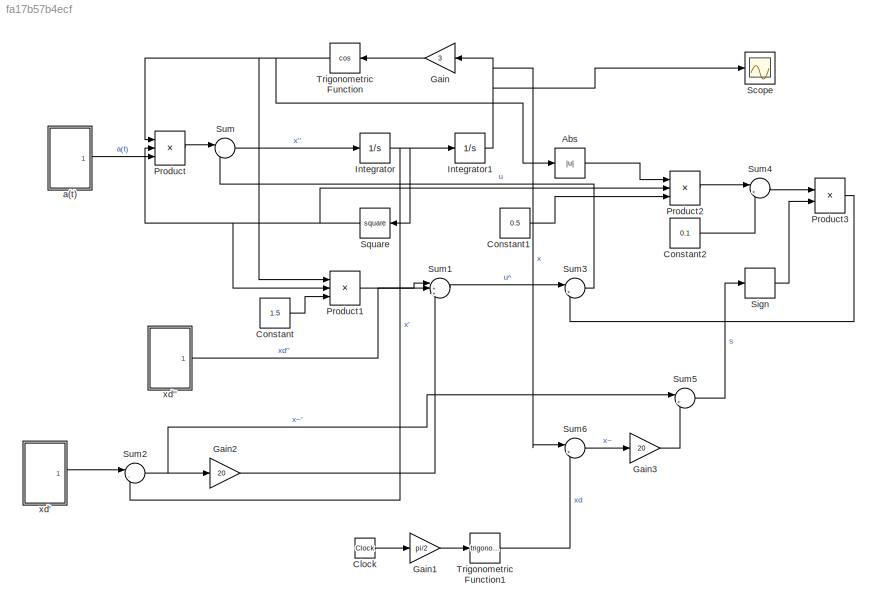
MODEL slx_fa17b57b4ecf
KIND model
CONFIG AbsTol = auto
CONFIG EnableMultiTasking = off
CONFIG FixedStep = auto
CONFIG MaxStep = auto
CONFIG MinStep = auto
CONFIG RelTol = 1e-3
CONFIG SampleTimeConstraint = Unconstrained
CONFIG Solver = VariableStepAuto
CONFIG SolverName = VariableStepAuto
CONFIG StartTime = 0.0
CONFIG StopTime = 100
BLOCK [Abs] Abs
  SaturateOnIntegerOverflow = off
BLOCK [Clock] Clock
BLOCK [Constant] Constant
  Value = 1.5
BLOCK [Constant] Constant1
  Value = 0.5
BLOCK [Constant] Constant2
  Value = 0.1
BLOCK [Gain] Gain
  Gain = 3
  OutDataTypeStr = Inherit: Inherit via internal rule
  ParamDataTypeStr = Inherit: Inherit via internal rule
  SaturateOnIntegerOverflow = off
BLOCK [Gain] Gain1
  Gain = pi/2
  OutDataTypeStr = Inherit: Inherit via internal rule
  ParamDataTypeStr = Inherit: Inherit via internal rule
  SaturateOnIntegerOverflow = off
BLOCK [Gain] Gain2
  Gain = 20
  OutDataTypeStr = Inherit: Inherit via internal rule
  ParamDataTypeStr = Inherit: Inherit via internal rule
  SaturateOnIntegerOverflow = off
BLOCK [Gain] Gain3
  Gain = 20
  OutDataTypeStr = Inherit: Inherit via internal rule
  ParamDataTypeStr = Inherit: Inherit via internal rule
  SaturateOnIntegerOverflow = off
BLOCK [Integrator] Integrator
  Ports = [1, 1]
BLOCK [Integrator] Integrator1
  Ports = [1, 1]
BLOCK [Product] Product
  InputSameDT = off
  Inputs = 3
  OutDataTypeStr = Inherit: Inherit via internal rule
  Ports = [3, 1]
  RndMeth = Floor
  SaturateOnIntegerOverflow = off
BLOCK [Product] Product1
  InputSameDT = off
  Inputs = 3
  OutDataTypeStr = Inherit: Inherit via internal rule
  Ports = [3, 1]
  RndMeth = Floor
  SaturateOnIntegerOverflow = off
BLOCK [Product] Product2
  InputSameDT = off
  Inputs = 3
  OutDataTypeStr = Inherit: Inherit via internal rule
  Ports = [3, 1]
  RndMeth = Floor
  SaturateOnIntegerOverflow = off
BLOCK [Product] Product3
  InputSameDT = off
  OutDataTypeStr = Inherit: Inherit via internal rule
  Ports = [2, 1]
  RndMeth = Floor
  SaturateOnIntegerOverflow = off
BLOCK [Scope] Scope
  Floating = off
  NumInputPorts = 1
  Ports = [1]
  ScopeSpecificationString = Simulink.scopes.TimeScopeBlockCfg('CurrentConfiguration', extmgr.ConfigurationSet(extmgr.Configuration('Core','General UI',true),extmgr.Configuration('Core','Source UI',true),extmgr.Configuration('Sources','WiredSimulink',true),extmgr.Configuration('Visuals','Time Domain',true,'SerializedDisplays',{struct('MinYLimReal','-1.26211','MaxYLimReal','1.1939','YLabelReal','','MinYLimMag','0.00000','MaxYL...<+1363ch>
BLOCK [Signum] Sign
BLOCK [Math] Square
  Operator = square
  Ports = [1, 1]
BLOCK [Sum] Sum
  IconShape = round
  InputSameDT = off
  Inputs = |-+
  OutDataTypeStr = Inherit: Inherit via internal rule
  Ports = [2, 1]
  SaturateOnIntegerOverflow = off
BLOCK [Sum] Sum1
  IconShape = round
  InputSameDT = off
  Inputs = |++-
  OutDataTypeStr = Inherit: Inherit via internal rule
  Ports = [3, 1]
  SaturateOnIntegerOverflow = off
BLOCK [Sum] Sum2
  IconShape = round
  InputSameDT = off
  Inputs = |-+
  OutDataTypeStr = Inherit: Inherit via internal rule
  Ports = [2, 1]
  SaturateOnIntegerOverflow = off
BLOCK [Sum] Sum3
  IconShape = round
  InputSameDT = off
  Inputs = |+-
  OutDataTypeStr = Inherit: Inherit via internal rule
  Ports = [2, 1]
  SaturateOnIntegerOverflow = off
BLOCK [Sum] Sum4
  IconShape = round
  InputSameDT = off
  Inputs = |++
  OutDataTypeStr = Inherit: Inherit via internal rule
  Ports = [2, 1]
  SaturateOnIntegerOverflow = off
BLOCK [Sum] Sum5
  IconShape = round
  InputSameDT = off
  Inputs = |++
  OutDataTypeStr = Inherit: Inherit via internal rule
  Ports = [2, 1]
  SaturateOnIntegerOverflow = off
BLOCK [Sum] Sum6
  IconShape = round
  InputSameDT = off
  Inputs = |+-
  OutDataTypeStr = Inherit: Inherit via internal rule
  Ports = [2, 1]
  SaturateOnIntegerOverflow = off
BLOCK [Trigonometry] Trigonometric Function
  Operator = cos
  Ports = [1, 1]
BLOCK [Trigonometry] Trigonometric Function1
  Ports = [1, 1]
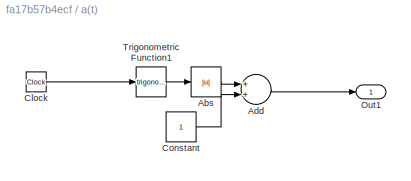
BLOCK [SubSystem] a(t) 
  Ports = [0, 1]
  RequestExecContextInheritance = off
BLOCK [Abs] a(t) /Abs
  SaturateOnIntegerOverflow = off
BLOCK [Sum] a(t) /Add
  InputSameDT = off
  OutDataTypeStr = Inherit: Inherit via internal rule
  Ports = [2, 1]
  SaturateOnIntegerOverflow = off
BLOCK [Clock] a(t) /Clock
BLOCK [Constant] a(t) /Constant
BLOCK [Outport] a(t) /Out1
  IconDisplay = Port number
BLOCK [Trigonometry] a(t) /Trigonometric Function1
  Ports = [1, 1]
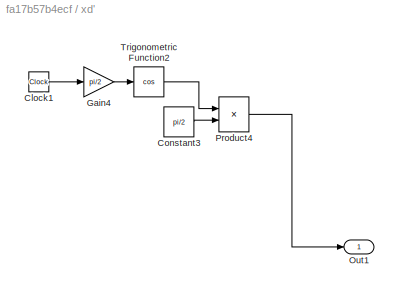
BLOCK [SubSystem] xd'
  Ports = [0, 1]
  RequestExecContextInheritance = off
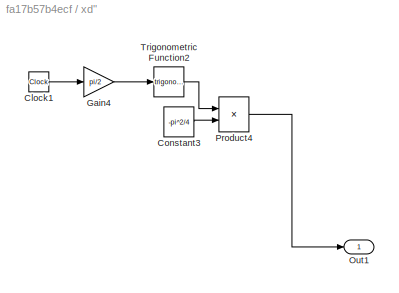
BLOCK [SubSystem] xd''
  Ports = [0, 1]
  RequestExecContextInheritance = off
BLOCK [Clock] xd''/Clock1
BLOCK [Constant] xd''/Constant3
  Value = -pi^2/4
BLOCK [Gain] xd''/Gain4
  Gain = pi/2
  OutDataTypeStr = Inherit: Inherit via internal rule
  ParamDataTypeStr = Inherit: Inherit via internal rule
  SaturateOnIntegerOverflow = off
BLOCK [Outport] xd''/Out1
  IconDisplay = Port number
BLOCK [Product] xd''/Product4
  InputSameDT = off
  OutDataTypeStr = Inherit: Inherit via internal rule
  Ports = [2, 1]
  RndMeth = Floor
  SaturateOnIntegerOverflow = off
BLOCK [Trigonometry] xd''/Trigonometric Function2
  Ports = [1, 1]
BLOCK [Clock] xd'/Clock1
BLOCK [Constant] xd'/Constant3
  Value = pi/2
BLOCK [Gain] xd'/Gain4
  Gain = pi/2
  OutDataTypeStr = Inherit: Inherit via internal rule
  ParamDataTypeStr = Inherit: Inherit via internal rule
  SaturateOnIntegerOverflow = off
BLOCK [Outport] xd'/Out1
  IconDisplay = Port number
BLOCK [Product] xd'/Product4
  InputSameDT = off
  OutDataTypeStr = Inherit: Inherit via internal rule
  Ports = [2, 1]
  RndMeth = Floor
  SaturateOnIntegerOverflow = off
BLOCK [Trigonometry] xd'/Trigonometric Function2
  Operator = cos
  Ports = [1, 1]
LINE Abs:1 -> Product2:1
LINE Clock:1 -> Gain1:1
LINE Constant1:1 -> Product2:3
LINE Constant2:1 -> Sum4:2
LINE Constant:1 -> Product1:3
LINE Gain1:1 -> Trigonometric Function1:1
LINE Gain2:1 -> Sum1:3
LINE Gain3:1 -> Sum5:2
LINE Gain:1 -> Trigonometric Function:1
NET Integrator1:1 -> Gain:1, Scope:1, Sum6:1
NET Integrator:1 -> Integrator1:1, Square:1, Sum2:2
LINE Product1:1 -> Sum1:1
LINE Product2:1 -> Sum4:1
LINE Product3:1 -> Sum3:2
LINE Product:1 -> Sum:1
LINE Sign:1 -> Product3:2
NET Square:1 -> Product1:2, Product2:2, Product:2
LINE Sum1:1 -> Sum3:1
NET Sum2:1 -> Gain2:1, Sum5:1
LINE Sum3:1 -> Sum:2
LINE Sum4:1 -> Product3:1
LINE Sum5:1 -> Sign:1
LINE Sum6:1 -> Gain3:1
LINE Sum:1 -> Integrator:1
LINE Trigonometric Function1:1 -> Sum6:2
NET Trigonometric Function:1 -> Abs:1, Product1:1, Product:1
LINE a(t) /Abs:1 -> a(t) /Add:1
LINE a(t) /Add:1 -> a(t) /Out1:1
LINE a(t) /Clock:1 -> a(t) /Trigonometric Function1:1
LINE a(t) /Constant:1 -> a(t) /Add:2
LINE a(t) /Trigonometric Function1:1 -> a(t) /Abs:1
LINE a(t) :1 -> Product:3
LINE xd''/Clock1:1 -> xd''/Gain4:1
LINE xd''/Constant3:1 -> xd''/Product4:2
LINE xd''/Gain4:1 -> xd''/Trigonometric Function2:1
LINE xd''/Product4:1 -> xd''/Out1:1
LINE xd''/Trigonometric Function2:1 -> xd''/Product4:1
LINE xd'':1 -> Sum1:2
LINE xd'/Clock1:1 -> xd'/Gain4:1
LINE xd'/Constant3:1 -> xd'/Product4:2
LINE xd'/Gain4:1 -> xd'/Trigonometric Function2:1
LINE xd'/Product4:1 -> xd'/Out1:1
LINE xd'/Trigonometric Function2:1 -> xd'/Product4:1
LINE xd':1 -> Sum2:1
note: NET lines group one-source signal fan-out (src -> all destinations, sorted); 1:1 wires keep LINE
